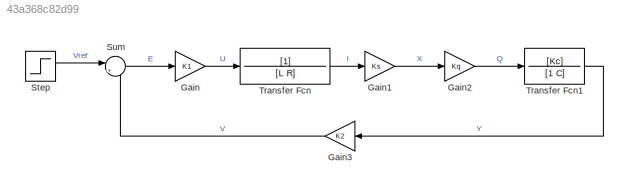
MODEL slx_43a368c82d99
KIND model
CONFIG AbsTol = auto
CONFIG EnableMultiTasking = off
CONFIG FixedStep = auto
CONFIG MaxStep = auto
CONFIG MinStep = auto
CONFIG RelTol = 1e-3
CONFIG SampleTimeConstraint = Unconstrained
CONFIG SolverName = VariableStepAuto
CONFIG StartTime = 0.0
CONFIG StopTime = 10.0
BLOCK [Gain] Gain
  Gain = K1
BLOCK [Gain] Gain1
  Gain = Ks
BLOCK [Gain] Gain2
  Gain = Kq
BLOCK [Gain] Gain3
  Gain = K2
BLOCK [Step] Step
  After = Vr
  SampleTime = 0
BLOCK [Sum] Sum
  Inputs = |+-
BLOCK [TransferFcn] Transfer Fcn
  Denominator = [L R]
BLOCK [TransferFcn] Transfer Fcn1
  Denominator = [1 C]
  Numerator = [Kc]
LINE Gain1:1 -> Gain2:1
LINE Gain2:1 -> Transfer Fcn1:1
LINE Gain3:1 -> Sum:2
LINE Gain:1 -> Transfer Fcn:1
LINE Step:1 -> Sum:1
LINE Sum:1 -> Gain:1
LINE Transfer Fcn1:1 -> Gain3:1
LINE Transfer Fcn:1 -> Gain1:1
